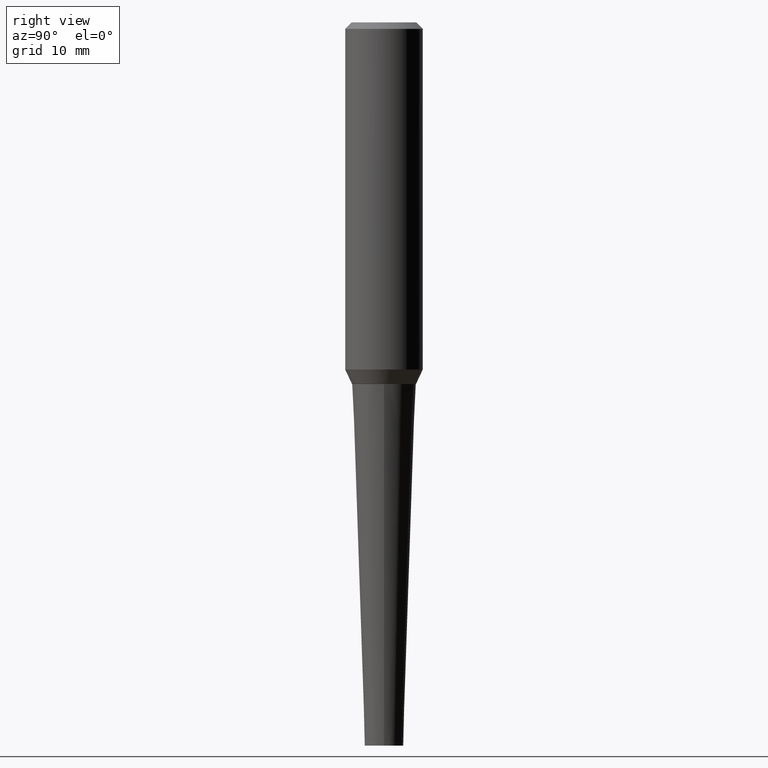
[diagram: clean part render]
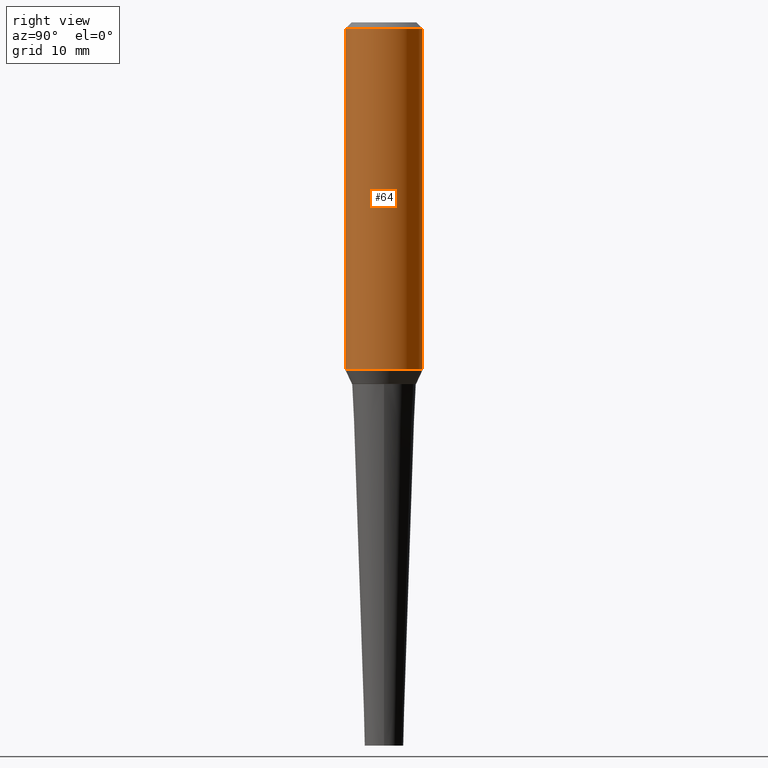
[diagram: same view with one face highlighted and labeled with its STEP entity id]
A machine part, right view. The second image highlights one B-rep face of the part: STEP entity #64.
In plain terms, the highlighted cylindrical surface (partial cylindrical patch) has radius 4.7625 mm, axis along (-0, 0, 1).
Its self-contained STEP definition (entity closure, byte-faithful):
#7 = CARTESIAN_POINT ( 'NONE',  ( 1.332267629550185482E-15, 0.1874999999999996947, -5.735975815650552031E-16 ) ) ;
#19 = VECTOR ( 'NONE', #44, 39.37007874015748143 ) ;
#33 = EDGE_CURVE ( 'NONE', #275, #383, #80, .T. ) ;
#40 = DIRECTION ( 'NONE',  ( -2.676116305263811806E-29, 3.161180992522094064E-15, 1.000000000000000000 ) ) ;
#44 = DIRECTION ( 'NONE',  ( -2.676116305263811806E-29, 3.161180992522094459E-15, 1.000000000000000000 ) ) ;
#49 = EDGE_LOOP ( 'NONE', ( #343, #132, #99, #350 ) ) ;
#51 = VERTEX_POINT ( 'NONE', #198 ) ;
#64 = ADVANCED_FACE ( 'NONE', ( #352 ), #328, .T. ) ;
#80 = CIRCLE ( 'NONE', #254, 0.1875000000000004718 ) ;
#82 = CARTESIAN_POINT ( 'NONE',  ( -1.286343374582167887E-15, -0.1875000000000010270, -0.03124999999999950734 ) ) ;
#95 = AXIS2_PLACEMENT_3D ( 'NONE', #134, #40, #320 ) ;
#99 = ORIENTED_EDGE ( 'NONE', *, *, #33, .F. ) ;
#103 = DIRECTION ( 'NONE',  ( -2.676116305263811806E-29, 3.161180992522094064E-15, 1.000000000000000000 ) ) ;
#118 = EDGE_CURVE ( 'NONE', #133, #51, #201, .T. ) ;
#132 = ORIENTED_EDGE ( 'NONE', *, *, #227, .T. ) ;
#133 = VERTEX_POINT ( 'NONE', #318 ) ;
#134 = CARTESIAN_POINT ( 'NONE',  ( -3.397982428467408395E-30, -4.866104238714468673E-16, 1.912385453283800096E-17 ) ) ;
#137 = VECTOR ( 'NONE', #354, 39.37007874015748143 ) ;
#180 = EDGE_CURVE ( 'NONE', #133, #275, #288, .T. ) ;
#192 = DIRECTION ( 'NONE',  ( -6.982962677686266711E-15, -1.000000000000000000, 2.913971193241881555E-15 ) ) ;
#198 = CARTESIAN_POINT ( 'NONE',  ( 1.332267629550207570E-15, 0.1874999999999941436, -1.680006181930203457 ) ) ;
#201 = CIRCLE ( 'NONE', #243, 0.1874999999999999445 ) ;
#204 = CARTESIAN_POINT ( 'NONE',  ( 4.156093693560677196E-29, -5.797414033508819911E-15, -1.680006181930203013 ) ) ;
#206 = LINE ( 'NONE', #7, #19 ) ;
#227 = EDGE_CURVE ( 'NONE', #51, #383, #206, .T. ) ;
#230 = CARTESIAN_POINT ( 'NONE',  ( 1.309305502066175600E-15, 0.1874999999999998890, -0.03125000000000069389 ) ) ;
#243 = AXIS2_PLACEMENT_3D ( 'NONE', #204, #263, #192 ) ;
#254 = AXIS2_PLACEMENT_3D ( 'NONE', #265, #103, #291 ) ;
#259 = CARTESIAN_POINT ( 'NONE',  ( -1.309305502066179544E-15, -0.1875000000000006661, 6.118452906307312050E-16 ) ) ;
#263 = DIRECTION ( 'NONE',  ( -2.676116305263811806E-29, 3.161180992522094064E-15, 1.000000000000000000 ) ) ;
#265 = CARTESIAN_POINT ( 'NONE',  ( -2.561696083072463877E-30, -5.853973298877627382E-16, -0.03125000000000010408 ) ) ;
#275 = VERTEX_POINT ( 'NONE', #82 ) ;
#288 = LINE ( 'NONE', #259, #137 ) ;
#291 = DIRECTION ( 'NONE',  ( -6.982962677686265922E-15, -1.000000000000000000, 3.164390592661096858E-15 ) ) ;
#318 = CARTESIAN_POINT ( 'NONE',  ( -1.309305502066133001E-15, -0.1875000000000057454, -1.680006181930202347 ) ) ;
#320 = DIRECTION ( 'NONE',  ( -6.982962677686265922E-15, -1.000000000000000000, 3.161180992522093670E-15 ) ) ;
#328 = CYLINDRICAL_SURFACE ( 'NONE', #95, 0.1875000000000001943 ) ;
#343 = ORIENTED_EDGE ( 'NONE', *, *, #118, .T. ) ;
#350 = ORIENTED_EDGE ( 'NONE', *, *, #180, .F. ) ;
#352 = FACE_OUTER_BOUND ( 'NONE', #49, .T. ) ;
#354 = DIRECTION ( 'NONE',  ( -2.676116305263811806E-29, 3.161180992522094459E-15, 1.000000000000000000 ) ) ;
#383 = VERTEX_POINT ( 'NONE', #230 ) ;